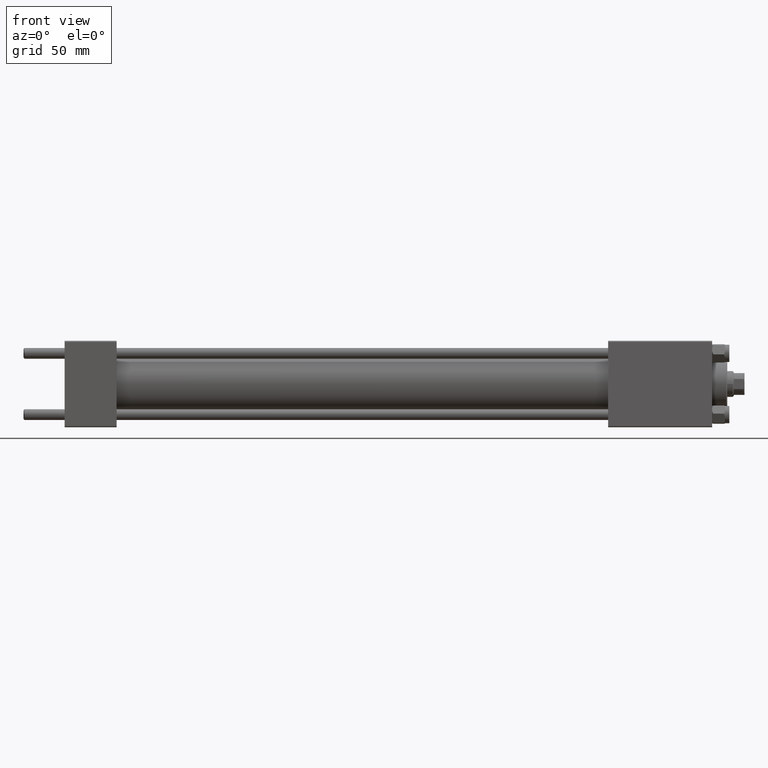
[diagram: clean part render]
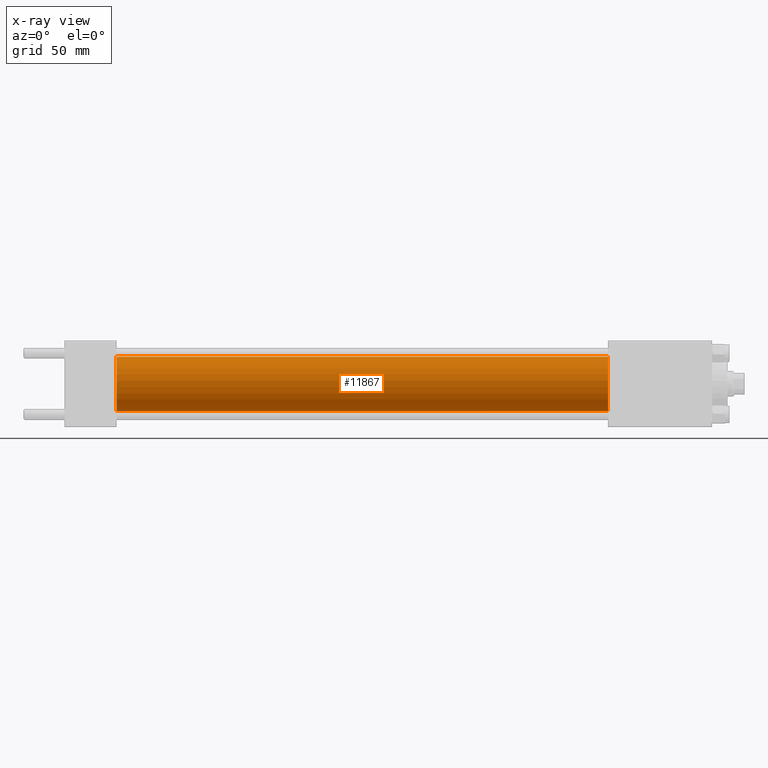
[diagram: x-ray — body ghosted, one internal face saturated and labeled with its STEP entity id]
A machine part, front view, then the same camera in x-ray: the body is ghosted and one INTERNAL B-rep face — a face not visible from any outside direction — is saturated and labeled: STEP entity #11867.
In plain terms, the highlighted cylindrical surface (edge-blend (fillet) strip) has radius 12.5 mm, axis along (-1, -0, -0).
Its self-contained STEP definition (entity closure, byte-faithful):
#257 = VERTEX_POINT ( 'NONE', #22256 ) ;
#1321 = VECTOR ( 'NONE', #24971, 1000.000000000000000 ) ;
#1737 = CARTESIAN_POINT ( 'NONE',  ( 251.0000000000000000, 1.530808498934190732E-15, -12.49999999999999645 ) ) ;
#2266 = CARTESIAN_POINT ( 'NONE',  ( 251.0000000000000000, 0.000000000000000000, 0.000000000000000000 ) ) ;
#4221 = EDGE_LOOP ( 'NONE', ( #10343, #17934, #36793, #30871 ) ) ;
#5284 = LINE ( 'NONE', #1737, #20979 ) ;
#7293 = EDGE_CURVE ( 'NONE', #26439, #257, #43910, .T. ) ;
#7912 = AXIS2_PLACEMENT_3D ( 'NONE', #42976, #12177, #39697 ) ;
#8067 = CARTESIAN_POINT ( 'NONE',  ( 24.00000000000000000, 1.530808498934190732E-15, -12.49999999999999645 ) ) ;
#8375 = CYLINDRICAL_SURFACE ( 'NONE', #7912, 12.49999999999999645 ) ;
#10343 = ORIENTED_EDGE ( 'NONE', *, *, #21151, .T. ) ;
#11867 = ADVANCED_FACE ( 'NONE', ( #23551 ), #8375, .F. ) ;
#12177 = DIRECTION ( 'NONE',  ( -1.000000000000000000, -0.000000000000000000, -0.000000000000000000 ) ) ;
#12628 = DIRECTION ( 'NONE',  ( -1.000000000000000000, -0.000000000000000000, -0.000000000000000000 ) ) ;
#17934 = ORIENTED_EDGE ( 'NONE', *, *, #28289, .T. ) ;
#20176 = AXIS2_PLACEMENT_3D ( 'NONE', #2266, #20721, #32828 ) ;
#20721 = DIRECTION ( 'NONE',  ( 1.000000000000000000, 0.000000000000000000, 0.000000000000000000 ) ) ;
#20930 = CARTESIAN_POINT ( 'NONE',  ( 251.0000000000000000, 0.000000000000000000, 12.49999999999999645 ) ) ;
#20979 = VECTOR ( 'NONE', #12628, 1000.000000000000000 ) ;
#21151 = EDGE_CURVE ( 'NONE', #26439, #28880, #35535, .T. ) ;
#21805 = DIRECTION ( 'NONE',  ( 0.000000000000000000, 0.000000000000000000, -1.000000000000000000 ) ) ;
#22256 = CARTESIAN_POINT ( 'NONE',  ( 24.00000000000000000, 0.000000000000000000, 12.49999999999999645 ) ) ;
#23551 = FACE_OUTER_BOUND ( 'NONE', #4221, .T. ) ;
#24971 = DIRECTION ( 'NONE',  ( -1.000000000000000000, -0.000000000000000000, -0.000000000000000000 ) ) ;
#25219 = CIRCLE ( 'NONE', #44576, 12.49999999999999645 ) ;
#25945 = CARTESIAN_POINT ( 'NONE',  ( 251.0000000000000000, 0.000000000000000000, 12.49999999999999645 ) ) ;
#26439 = VERTEX_POINT ( 'NONE', #25945 ) ;
#28289 = EDGE_CURVE ( 'NONE', #28880, #33902, #5284, .T. ) ;
#28880 = VERTEX_POINT ( 'NONE', #45357 ) ;
#30871 = ORIENTED_EDGE ( 'NONE', *, *, #7293, .F. ) ;
#32828 = DIRECTION ( 'NONE',  ( 0.000000000000000000, 0.000000000000000000, -1.000000000000000000 ) ) ;
#33902 = VERTEX_POINT ( 'NONE', #8067 ) ;
#35535 = CIRCLE ( 'NONE', #20176, 12.49999999999999645 ) ;
#36793 = ORIENTED_EDGE ( 'NONE', *, *, #39114, .F. ) ;
#39114 = EDGE_CURVE ( 'NONE', #257, #33902, #25219, .T. ) ;
#39697 = DIRECTION ( 'NONE',  ( 0.000000000000000000, 0.000000000000000000, 1.000000000000000000 ) ) ;
#42976 = CARTESIAN_POINT ( 'NONE',  ( 251.0000000000000000, 0.000000000000000000, 0.000000000000000000 ) ) ;
#43910 = LINE ( 'NONE', #20930, #1321 ) ;
#44576 = AXIS2_PLACEMENT_3D ( 'NONE', #45033, #49823, #21805 ) ;
#45033 = CARTESIAN_POINT ( 'NONE',  ( 24.00000000000000000, 0.000000000000000000, 0.000000000000000000 ) ) ;
#45357 = CARTESIAN_POINT ( 'NONE',  ( 251.0000000000000000, 1.530808498934190732E-15, -12.49999999999999645 ) ) ;
#49823 = DIRECTION ( 'NONE',  ( 1.000000000000000000, 0.000000000000000000, 0.000000000000000000 ) ) ;